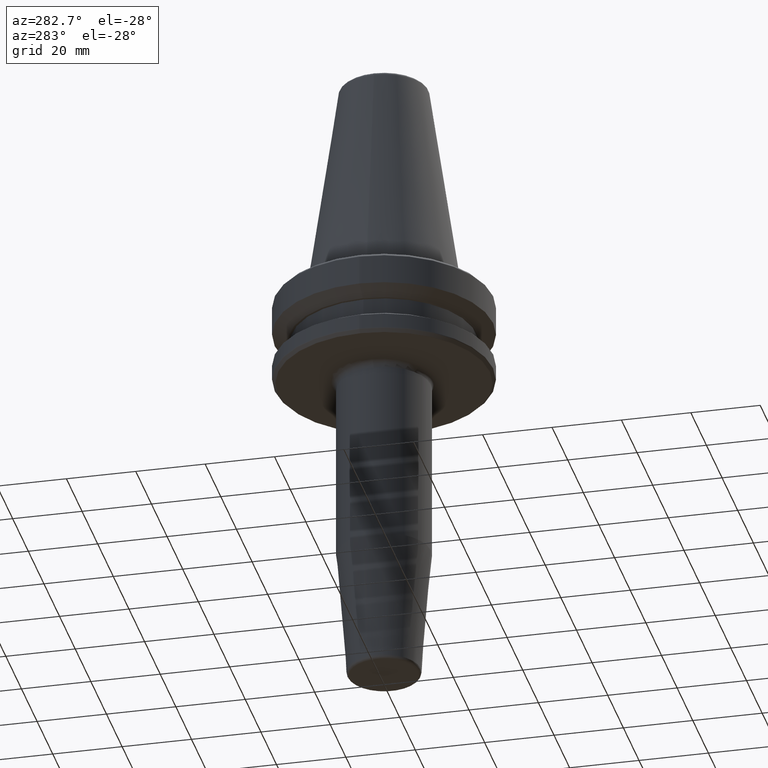
[diagram: clean part render]
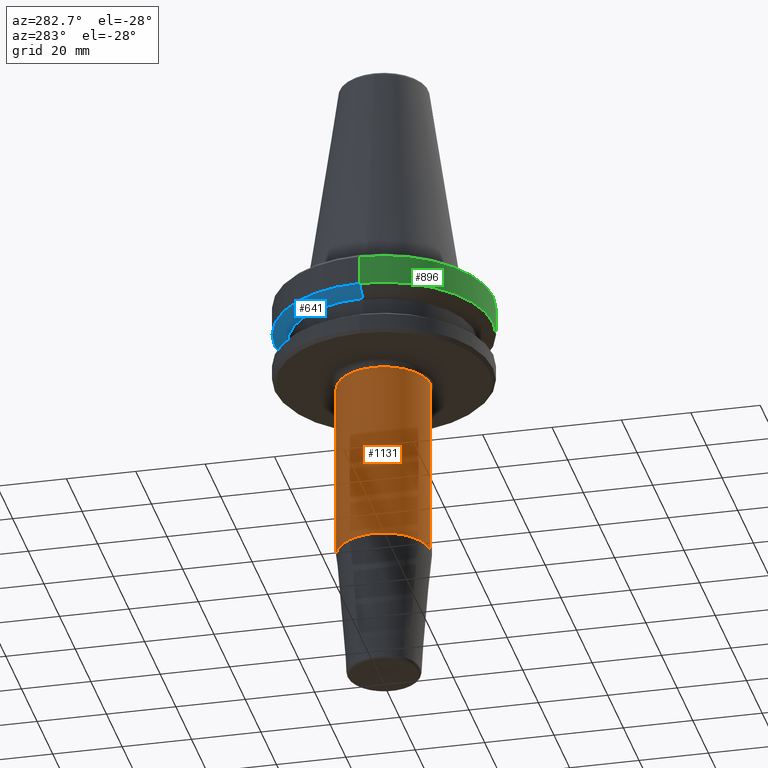
[diagram: same view with three faces highlighted in distinct colors, each labeled with its STEP entity id]
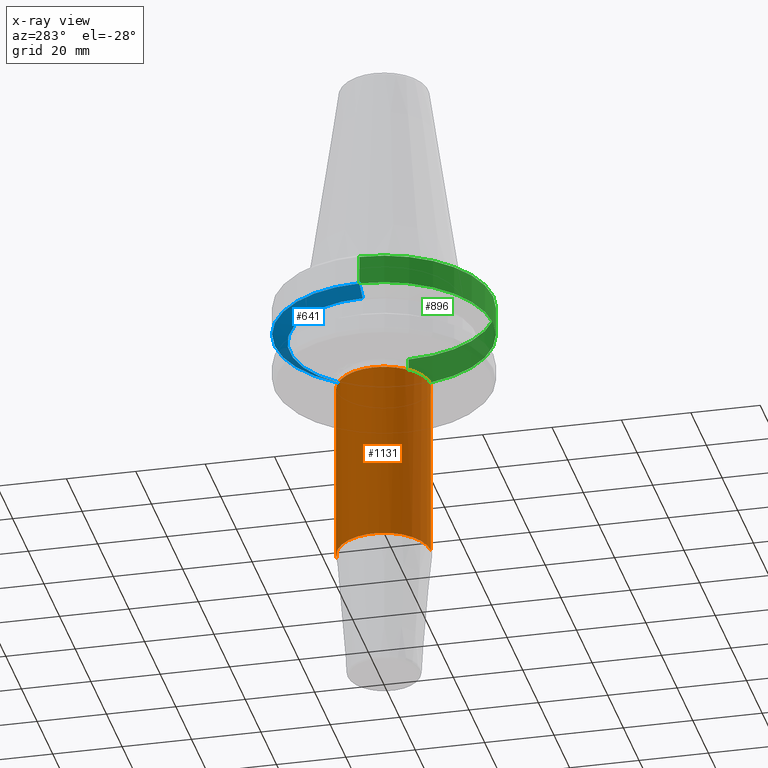
[diagram: x-ray of the same camera — body ghosted, the three highlighted faces saturated]
A machine part, auxiliary view with three faces highlighted in distinct colors.
The next image is the same camera in x-ray (body ghosted, the three faces saturated) — at least one of them is partly hidden behind the body in this view.
Their STEP definitions:

[orange] entity #1131 — the highlighted cylindrical surface (partial cylindrical patch) has radius 13.5 mm, axis along (-0, 0, -1).
#13 = AXIS2_PLACEMENT_3D ( 'NONE', #1137, #778, #776 ) ;
#113 = EDGE_CURVE ( 'NONE', #714, #809, #1152, .T. ) ;
#174 = CARTESIAN_POINT ( 'NONE',  ( 0.0000000000000000000, 13.49999999999999800, -28.99999999999999600 ) ) ;
#189 = AXIS2_PLACEMENT_3D ( 'NONE', #868, #441, #1089 ) ;
#194 = DIRECTION ( 'NONE',  ( 0.0000000000000000000, 0.0000000000000000000, -1.000000000000000000 ) ) ;
#214 = CIRCLE ( 'NONE', #189, 13.49999999999999600 ) ;
#241 = VECTOR ( 'NONE', #384, 1000.000000000000000 ) ;
#284 = EDGE_CURVE ( 'NONE', #809, #494, #214, .T. ) ;
#293 = EDGE_CURVE ( 'NONE', #636, #1122, #1219, .T. ) ;
#311 = DIRECTION ( 'NONE',  ( -0.0000000000000000000, 5.530662963891270900E-017, -1.000000000000000000 ) ) ;
#318 = AXIS2_PLACEMENT_3D ( 'NONE', #1048, #194, #802 ) ;
#331 = EDGE_CURVE ( 'NONE', #714, #636, #1188, .T. ) ;
#375 = CARTESIAN_POINT ( 'NONE',  ( 0.0000000000000000000, 13.50000000000000400, -120.0000000000000000 ) ) ;
#384 = DIRECTION ( 'NONE',  ( -0.0000000000000000000, 5.530662963891270900E-017, -1.000000000000000000 ) ) ;
#441 = DIRECTION ( 'NONE',  ( -0.0000000000000000000, 5.530662963891270900E-017, -1.000000000000000000 ) ) ;
#442 = FACE_OUTER_BOUND ( 'NONE', #1185, .T. ) ;
#494 = VERTEX_POINT ( 'NONE', #884 ) ;
#507 = ORIENTED_EDGE ( 'NONE', *, *, #284, .F. ) ;
#636 = VERTEX_POINT ( 'NONE', #746 ) ;
#649 = CARTESIAN_POINT ( 'NONE',  ( 1.653273178848927100E-015, -13.50000000000000000, -28.99999999999999600 ) ) ;
#652 = AXIS2_PLACEMENT_3D ( 'NONE', #1223, #900, #848 ) ;
#701 = ORIENTED_EDGE ( 'NONE', *, *, #1032, .T. ) ;
#707 = ORIENTED_EDGE ( 'NONE', *, *, #331, .T. ) ;
#714 = VERTEX_POINT ( 'NONE', #649 ) ;
#746 = CARTESIAN_POINT ( 'NONE',  ( -13.49999999999999800, 1.106132592778247800E-016, -28.99999999999999600 ) ) ;
#776 = DIRECTION ( 'NONE',  ( 0.0000000000000000000, 1.000000000000000000, 0.0000000000000000000 ) ) ;
#778 = DIRECTION ( 'NONE',  ( -0.0000000000000000000, 5.530662963891270900E-017, -1.000000000000000000 ) ) ;
#802 = DIRECTION ( 'NONE',  ( -1.000000000000000000, 0.0000000000000000000, 0.0000000000000000000 ) ) ;
#809 = VERTEX_POINT ( 'NONE', #1266 ) ;
#815 = LINE ( 'NONE', #375, #241 ) ;
#848 = DIRECTION ( 'NONE',  ( -1.000000000000000000, 0.0000000000000000000, 0.0000000000000000000 ) ) ;
#849 = VECTOR ( 'NONE', #311, 1000.000000000000000 ) ;
#868 = CARTESIAN_POINT ( 'NONE',  ( 0.0000000000000000000, 3.035304478039067100E-015, -81.88138579146910000 ) ) ;
#884 = CARTESIAN_POINT ( 'NONE',  ( 1.653273178848926300E-015, 13.50000000000000000, -81.88138579146910000 ) ) ;
#900 = DIRECTION ( 'NONE',  ( 0.0000000000000000000, 0.0000000000000000000, -1.000000000000000000 ) ) ;
#921 = CYLINDRICAL_SURFACE ( 'NONE', #13, 13.49999999999999800 ) ;
#923 = CARTESIAN_POINT ( 'NONE',  ( 1.653273178848926700E-015, -13.49999999999999300, -120.0000000000000000 ) ) ;
#1032 = EDGE_CURVE ( 'NONE', #1122, #494, #815, .T. ) ;
#1048 = CARTESIAN_POINT ( 'NONE',  ( 0.0000000000000000000, 1.106132592778247800E-016, -28.99999999999999600 ) ) ;
#1089 = DIRECTION ( 'NONE',  ( 0.0000000000000000000, 1.000000000000000000, 0.0000000000000000000 ) ) ;
#1122 = VERTEX_POINT ( 'NONE', #174 ) ;
#1131 = ADVANCED_FACE ( 'NONE', ( #442 ), #921, .T. ) ;
#1137 = CARTESIAN_POINT ( 'NONE',  ( 0.0000000000000000000, 5.143516556418881000E-015, -120.0000000000000000 ) ) ;
#1152 = LINE ( 'NONE', #923, #849 ) ;
#1185 = EDGE_LOOP ( 'NONE', ( #1234, #707, #1198, #701, #507 ) ) ;
#1188 = CIRCLE ( 'NONE', #652, 13.49999999999999800 ) ;
#1198 = ORIENTED_EDGE ( 'NONE', *, *, #293, .T. ) ;
#1219 = CIRCLE ( 'NONE', #318, 13.49999999999999800 ) ;
#1223 = CARTESIAN_POINT ( 'NONE',  ( 0.0000000000000000000, 1.106132592778247800E-016, -28.99999999999999600 ) ) ;
#1234 = ORIENTED_EDGE ( 'NONE', *, *, #113, .F. ) ;
#1266 = CARTESIAN_POINT ( 'NONE',  ( 0.0000000000000000000, -13.49999999999999300, -81.88138579146910000 ) ) ;

[blue] entity #641 — the highlighted conical surface has half-angle 60 deg.
#1 = CARTESIAN_POINT ( 'NONE',  ( 31.50000000000000000, 0.0000000000000000000, -11.59985799368323700 ) ) ;
#6 = LINE ( 'NONE', #1, #777 ) ;
#75 = VERTEX_POINT ( 'NONE', #1018 ) ;
#125 = CARTESIAN_POINT ( 'NONE',  ( 31.50000000000000000, 0.0000000000000000000, -11.59985799368323700 ) ) ;
#177 = ORIENTED_EDGE ( 'NONE', *, *, #451, .F. ) ;
#185 = DIRECTION ( 'NONE',  ( -0.0000000000000000000, -0.0000000000000000000, 1.000000000000000000 ) ) ;
#225 = VERTEX_POINT ( 'NONE', #984 ) ;
#248 = CARTESIAN_POINT ( 'NONE',  ( -31.50000000000000000, 3.857637417314162700E-015, -11.59985799368323700 ) ) ;
#266 = AXIS2_PLACEMENT_3D ( 'NONE', #1121, #783, #480 ) ;
#282 = ORIENTED_EDGE ( 'NONE', *, *, #1068, .T. ) ;
#313 = DIRECTION ( 'NONE',  ( 1.000000000000000000, 0.0000000000000000000, 0.0000000000000000000 ) ) ;
#346 = ORIENTED_EDGE ( 'NONE', *, *, #575, .T. ) ;
#352 = VECTOR ( 'NONE', #651, 1000.000000000000100 ) ;
#385 = LINE ( 'NONE', #248, #352 ) ;
#417 = DIRECTION ( 'NONE',  ( -0.0000000000000000000, -0.0000000000000000000, 1.000000000000000000 ) ) ;
#436 = CARTESIAN_POINT ( 'NONE',  ( 27.16962701892216000, 0.0000000000000000000, -14.10000000000000100 ) ) ;
#451 = EDGE_CURVE ( 'NONE', #616, #1099, #6, .T. ) ;
#480 = DIRECTION ( 'NONE',  ( 1.000000000000000000, 0.0000000000000000000, 0.0000000000000000000 ) ) ;
#560 = CONICAL_SURFACE ( 'NONE', #1278, 31.50000000000000000, 1.047197551196599400 ) ;
#575 = EDGE_CURVE ( 'NONE', #225, #75, #385, .T. ) ;
#616 = VERTEX_POINT ( 'NONE', #436 ) ;
#641 = ADVANCED_FACE ( 'NONE', ( #1107 ), #560, .T. ) ;
#651 = DIRECTION ( 'NONE',  ( -0.8660254037844393700, 1.060575238724907800E-016, 0.4999999999999985000 ) ) ;
#712 = AXIS2_PLACEMENT_3D ( 'NONE', #1104, #417, #313 ) ;
#726 = EDGE_CURVE ( 'NONE', #1099, #75, #1275, .T. ) ;
#777 = VECTOR ( 'NONE', #1001, 1000.000000000000100 ) ;
#783 = DIRECTION ( 'NONE',  ( -0.0000000000000000000, -0.0000000000000000000, 1.000000000000000000 ) ) ;
#984 = CARTESIAN_POINT ( 'NONE',  ( -27.16962701892216000, 3.592478546794604700E-015, -14.10000000000000100 ) ) ;
#988 = ORIENTED_EDGE ( 'NONE', *, *, #726, .F. ) ;
#998 = DIRECTION ( 'NONE',  ( 1.000000000000000000, 0.0000000000000000000, 0.0000000000000000000 ) ) ;
#1001 = DIRECTION ( 'NONE',  ( 0.8660254037844393700, 0.0000000000000000000, 0.4999999999999985000 ) ) ;
#1008 = CIRCLE ( 'NONE', #712, 27.16962701892216000 ) ;
#1018 = CARTESIAN_POINT ( 'NONE',  ( -31.50000000000000000, 3.857637417314162700E-015, -11.59985799368323700 ) ) ;
#1026 = CARTESIAN_POINT ( 'NONE',  ( 0.0000000000000000000, 0.0000000000000000000, -11.59985799368323700 ) ) ;
#1068 = EDGE_CURVE ( 'NONE', #616, #225, #1008, .T. ) ;
#1099 = VERTEX_POINT ( 'NONE', #125 ) ;
#1104 = CARTESIAN_POINT ( 'NONE',  ( 0.0000000000000000000, 0.0000000000000000000, -14.10000000000000100 ) ) ;
#1107 = FACE_OUTER_BOUND ( 'NONE', #1111, .T. ) ;
#1111 = EDGE_LOOP ( 'NONE', ( #282, #346, #988, #177 ) ) ;
#1121 = CARTESIAN_POINT ( 'NONE',  ( 0.0000000000000000000, 0.0000000000000000000, -11.59985799368323700 ) ) ;
#1275 = CIRCLE ( 'NONE', #266, 31.50000000000000000 ) ;
#1278 = AXIS2_PLACEMENT_3D ( 'NONE', #1026, #185, #998 ) ;

[green] entity #896 — the highlighted cylindrical surface (partial cylindrical patch) has radius 31.5 mm, axis along (-0, -0, 1).
#10 = DIRECTION ( 'NONE',  ( -0.0000000000000000000, -0.0000000000000000000, 1.000000000000000000 ) ) ;
#15 = DIRECTION ( 'NONE',  ( -0.0000000000000000000, -0.0000000000000000000, 1.000000000000000000 ) ) ;
#75 = VERTEX_POINT ( 'NONE', #1018 ) ;
#107 = EDGE_CURVE ( 'NONE', #75, #1099, #1124, .T. ) ;
#125 = CARTESIAN_POINT ( 'NONE',  ( 31.50000000000000000, 0.0000000000000000000, -11.59985799368323700 ) ) ;
#144 = AXIS2_PLACEMENT_3D ( 'NONE', #1187, #917, #710 ) ;
#182 = VECTOR ( 'NONE', #15, 1000.000000000000000 ) ;
#273 = DIRECTION ( 'NONE',  ( -0.0000000000000000000, -0.0000000000000000000, 1.000000000000000000 ) ) ;
#309 = AXIS2_PLACEMENT_3D ( 'NONE', #1253, #273, #361 ) ;
#312 = ORIENTED_EDGE ( 'NONE', *, *, #349, .F. ) ;
#349 = EDGE_CURVE ( 'NONE', #1238, #612, #413, .T. ) ;
#361 = DIRECTION ( 'NONE',  ( 1.000000000000000000, 0.0000000000000000000, 0.0000000000000000000 ) ) ;
#393 = EDGE_CURVE ( 'NONE', #75, #1238, #619, .T. ) ;
#397 = CARTESIAN_POINT ( 'NONE',  ( 0.0000000000000000000, 0.0000000000000000000, -3.165685424949243700 ) ) ;
#413 = CIRCLE ( 'NONE', #791, 31.49999999999999300 ) ;
#432 = CARTESIAN_POINT ( 'NONE',  ( -31.49999999999999300, 3.857637417314161900E-015, -3.165685424949243700 ) ) ;
#434 = DIRECTION ( 'NONE',  ( -0.0000000000000000000, -0.0000000000000000000, 1.000000000000000000 ) ) ;
#557 = ORIENTED_EDGE ( 'NONE', *, *, #393, .F. ) ;
#589 = VECTOR ( 'NONE', #10, 1000.000000000000000 ) ;
#612 = VERTEX_POINT ( 'NONE', #631 ) ;
#619 = LINE ( 'NONE', #993, #589 ) ;
#631 = CARTESIAN_POINT ( 'NONE',  ( 31.49999999999999300, 0.0000000000000000000, -3.165685424949243700 ) ) ;
#659 = EDGE_LOOP ( 'NONE', ( #557, #953, #847, #312 ) ) ;
#710 = DIRECTION ( 'NONE',  ( 1.000000000000000000, 0.0000000000000000000, 0.0000000000000000000 ) ) ;
#716 = CARTESIAN_POINT ( 'NONE',  ( 31.50000000000000000, 0.0000000000000000000, 69.75694866325665100 ) ) ;
#728 = FACE_OUTER_BOUND ( 'NONE', #659, .T. ) ;
#738 = DIRECTION ( 'NONE',  ( 1.000000000000000000, 0.0000000000000000000, 0.0000000000000000000 ) ) ;
#791 = AXIS2_PLACEMENT_3D ( 'NONE', #397, #434, #738 ) ;
#842 = CYLINDRICAL_SURFACE ( 'NONE', #309, 31.50000000000000000 ) ;
#847 = ORIENTED_EDGE ( 'NONE', *, *, #1113, .T. ) ;
#896 = ADVANCED_FACE ( 'NONE', ( #728 ), #842, .T. ) ;
#917 = DIRECTION ( 'NONE',  ( -0.0000000000000000000, -0.0000000000000000000, 1.000000000000000000 ) ) ;
#953 = ORIENTED_EDGE ( 'NONE', *, *, #107, .T. ) ;
#976 = LINE ( 'NONE', #716, #182 ) ;
#993 = CARTESIAN_POINT ( 'NONE',  ( -31.50000000000000000, 3.857637417314162700E-015, 69.75694866325665100 ) ) ;
#1018 = CARTESIAN_POINT ( 'NONE',  ( -31.50000000000000000, 3.857637417314162700E-015, -11.59985799368323700 ) ) ;
#1099 = VERTEX_POINT ( 'NONE', #125 ) ;
#1113 = EDGE_CURVE ( 'NONE', #1099, #612, #976, .T. ) ;
#1124 = CIRCLE ( 'NONE', #144, 31.50000000000000000 ) ;
#1187 = CARTESIAN_POINT ( 'NONE',  ( 0.0000000000000000000, 0.0000000000000000000, -11.59985799368323700 ) ) ;
#1238 = VERTEX_POINT ( 'NONE', #432 ) ;
#1253 = CARTESIAN_POINT ( 'NONE',  ( 0.0000000000000000000, 0.0000000000000000000, 69.75694866325665100 ) ) ;